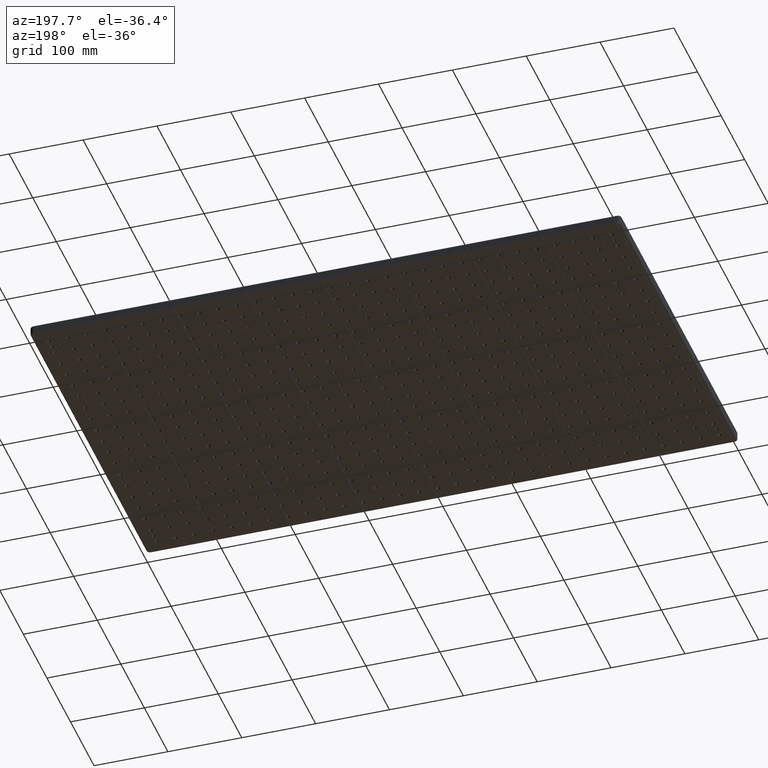
[diagram: clean part render]
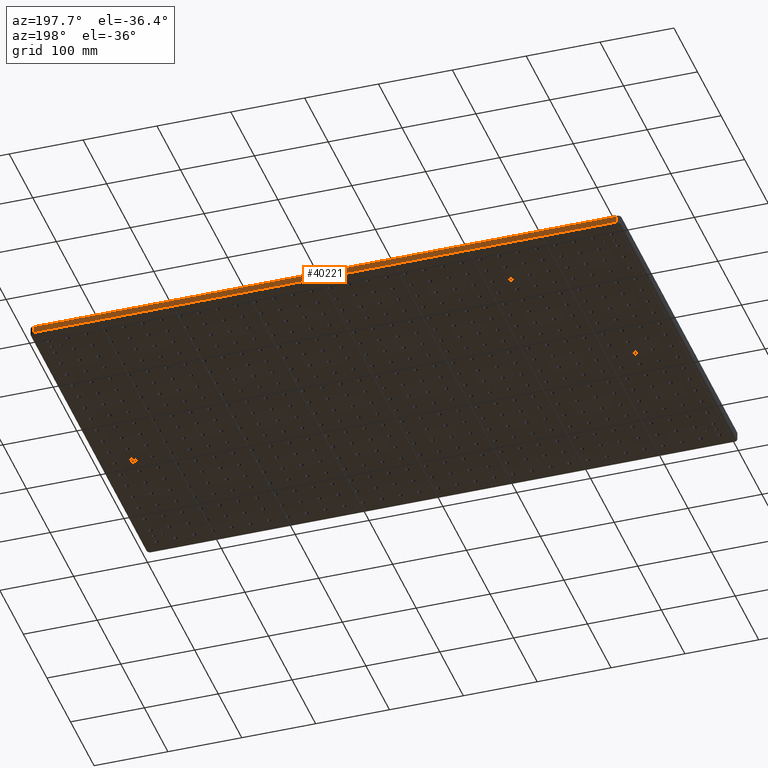
[diagram: same view with one face highlighted and labeled with its STEP entity id]
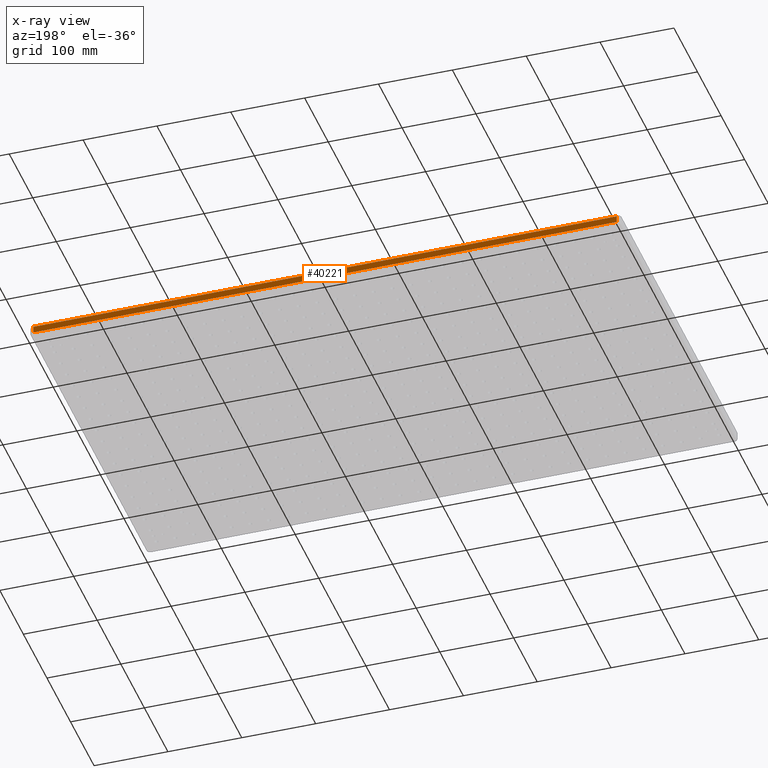
[diagram: x-ray of the same camera — body ghosted, the highlighted face saturated]
A machine part, auxiliary view. The second image highlights one B-rep face of the part: STEP entity #40221.
The next image is the same camera in x-ray: the body ghosted, the highlighted face saturated — about 0% of this face is hidden behind the body in this view.
In plain terms, the highlighted planar face has unit normal (0, 1, 0).
Its self-contained STEP definition (entity closure, byte-faithful):
#203 = DIRECTION ( 'NONE',  ( -0.0000000000000000000, 0.0000000000000000000, -1.000000000000000000 ) ) ;
#516 = ORIENTED_EDGE ( 'NONE', *, *, #30304, .T. ) ;
#2548 = FACE_OUTER_BOUND ( 'NONE', #30692, .T. ) ;
#5013 = VERTEX_POINT ( 'NONE', #35675 ) ;
#5276 = VECTOR ( 'NONE', #43955, 1000.000000000000000 ) ;
#6075 = VERTEX_POINT ( 'NONE', #38344 ) ;
#6813 = VERTEX_POINT ( 'NONE', #26139 ) ;
#7245 = EDGE_CURVE ( 'NONE', #6075, #5013, #7381, .T. ) ;
#7381 = LINE ( 'NONE', #18527, #41173 ) ;
#9260 = ORIENTED_EDGE ( 'NONE', *, *, #7245, .T. ) ;
#9860 = LINE ( 'NONE', #42148, #42587 ) ;
#11689 = DIRECTION ( 'NONE',  ( 1.000000000000000000, -0.0000000000000000000, 0.0000000000000000000 ) ) ;
#12362 = CARTESIAN_POINT ( 'NONE',  ( 4.999999999999998200, 500.0000000000000000, -11.00000000000000000 ) ) ;
#13912 = EDGE_CURVE ( 'NONE', #5013, #6813, #28416, .T. ) ;
#15428 = DIRECTION ( 'NONE',  ( -1.000000000000000000, 0.0000000000000000000, 0.0000000000000000000 ) ) ;
#18122 = CARTESIAN_POINT ( 'NONE',  ( 0.0000000000000000000, 500.0000000000000000, -13.00000000000000000 ) ) ;
#18527 = CARTESIAN_POINT ( 'NONE',  ( 795.0000000000000000, 500.0000000000000000, -2.000000000000000000 ) ) ;
#24879 = AXIS2_PLACEMENT_3D ( 'NONE', #18122, #28505, #24987 ) ;
#24987 = DIRECTION ( 'NONE',  ( 0.0000000000000000000, -0.0000000000000000000, 1.000000000000000000 ) ) ;
#25731 = VERTEX_POINT ( 'NONE', #12362 ) ;
#26139 = CARTESIAN_POINT ( 'NONE',  ( 795.0000000000000000, 500.0000000000000000, -11.00000000000000000 ) ) ;
#28416 = LINE ( 'NONE', #31253, #38214 ) ;
#28505 = DIRECTION ( 'NONE',  ( 0.0000000000000000000, 1.000000000000000000, 0.0000000000000000000 ) ) ;
#28950 = PLANE ( 'NONE',  #24879 ) ;
#29783 = LINE ( 'NONE', #33818, #5276 ) ;
#30304 = EDGE_CURVE ( 'NONE', #6813, #25731, #9860, .T. ) ;
#30692 = EDGE_LOOP ( 'NONE', ( #43337, #516, #40544, #9260 ) ) ;
#31253 = CARTESIAN_POINT ( 'NONE',  ( 795.0000000000000000, 500.0000000000000000, -13.00000000000000000 ) ) ;
#33818 = CARTESIAN_POINT ( 'NONE',  ( 4.999999999999998200, 500.0000000000000000, -13.00000000000000000 ) ) ;
#35675 = CARTESIAN_POINT ( 'NONE',  ( 795.0000000000000000, 500.0000000000000000, -2.000000000000000000 ) ) ;
#38214 = VECTOR ( 'NONE', #203, 1000.000000000000000 ) ;
#38344 = CARTESIAN_POINT ( 'NONE',  ( 4.999999999999998200, 500.0000000000000000, -2.000000000000000000 ) ) ;
#39878 = EDGE_CURVE ( 'NONE', #25731, #6075, #29783, .T. ) ;
#40221 = ADVANCED_FACE ( 'NONE', ( #2548 ), #28950, .T. ) ;
#40544 = ORIENTED_EDGE ( 'NONE', *, *, #39878, .T. ) ;
#41173 = VECTOR ( 'NONE', #11689, 1000.000000000000000 ) ;
#42148 = CARTESIAN_POINT ( 'NONE',  ( 0.0000000000000000000, 500.0000000000000000, -11.00000000000000000 ) ) ;
#42587 = VECTOR ( 'NONE', #15428, 1000.000000000000000 ) ;
#43337 = ORIENTED_EDGE ( 'NONE', *, *, #13912, .T. ) ;
#43955 = DIRECTION ( 'NONE',  ( 0.0000000000000000000, -0.0000000000000000000, 1.000000000000000000 ) ) ;